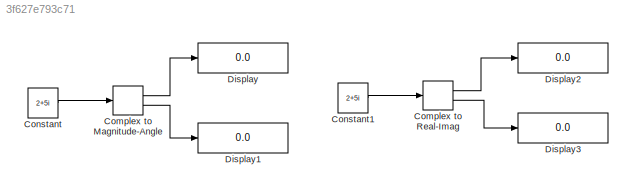
MODEL slx_3f627e793c71
KIND model
CONFIG AbsTol = auto
CONFIG EnableMultiTasking = off
CONFIG FixedStep = auto
CONFIG MaxStep = auto
CONFIG MinStep = auto
CONFIG RelTol = 1e-3
CONFIG SampleTimeConstraint = Unconstrained
CONFIG Solver = VariableStepAuto
CONFIG SolverName = VariableStepAuto
CONFIG StartTime = 0.0
CONFIG StopTime = 10.0
BLOCK [ComplexToMagnitudeAngle] Complex to Magnitude-Angle
  Ports = [1, 2]
BLOCK [ComplexToRealImag] Complex to Real-Imag
  Ports = [1, 2]
BLOCK [Constant] Constant
  Value = 2+5i
BLOCK [Constant] Constant1
  Value = 2+5i
BLOCK [Display] Display
  Decimation = 1
  Ports = [1]
BLOCK [Display] Display1
  Decimation = 1
  Ports = [1]
BLOCK [Display] Display2
  Decimation = 1
  Ports = [1]
BLOCK [Display] Display3
  Decimation = 1
  Ports = [1]
LINE Complex to Magnitude-Angle:1 -> Display:1
LINE Complex to Magnitude-Angle:2 -> Display1:1
LINE Complex to Real-Imag:1 -> Display2:1
LINE Complex to Real-Imag:2 -> Display3:1
LINE Constant1:1 -> Complex to Real-Imag:1
LINE Constant:1 -> Complex to Magnitude-Angle:1
